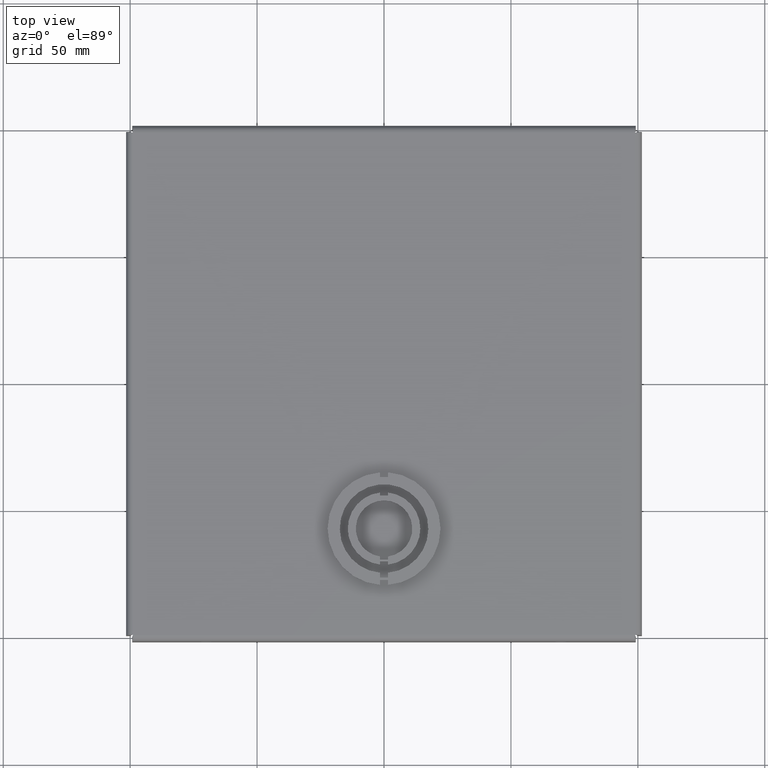
[diagram: clean part render]
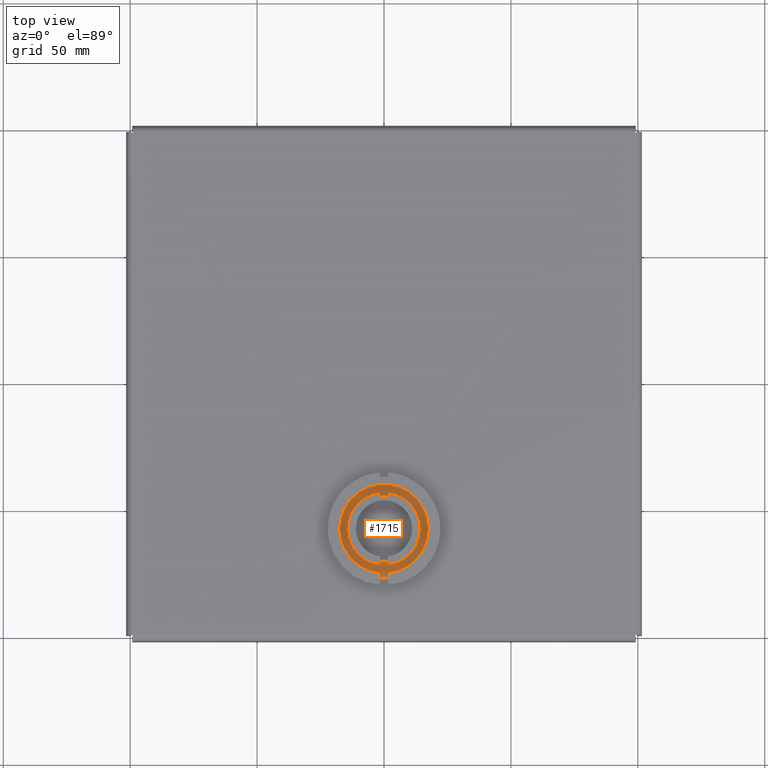
[diagram: same view with one face highlighted and labeled with its STEP entity id]
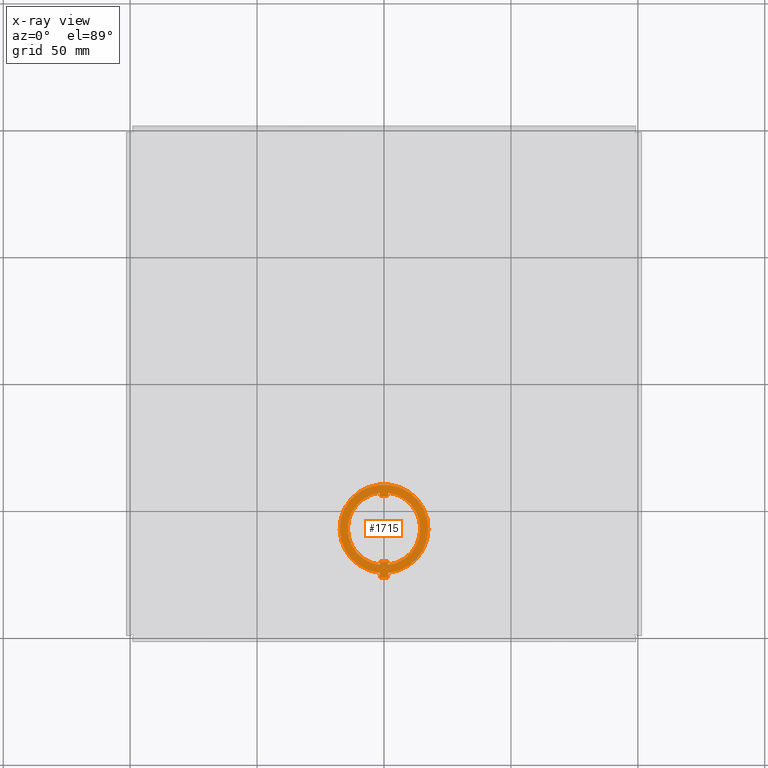
[diagram: x-ray of the same camera — body ghosted, the highlighted face saturated]
A machine part, top view. The second image highlights one B-rep face of the part: STEP entity #1715.
The next image is the same camera in x-ray: the body ghosted, the highlighted face saturated — about 0% of this face is hidden behind the body in this view.
In plain terms, the highlighted planar face has unit normal (0, 0, 1).
Its self-contained STEP definition (entity closure, byte-faithful):
#70=FACE_BOUND('',#369,.T.);
#73=CIRCLE('',#1730,0.6875);
#102=CIRCLE('',#1820,0.5625);
#104=CIRCLE('',#1826,0.5625);
#235=FACE_OUTER_BOUND('',#368,.T.);
#368=EDGE_LOOP('',(#1530,#1531,#1532,#1533));
#369=EDGE_LOOP('',(#1534,#1535,#1536,#1537,#1538,#1539,#1540,#1541));
#372=LINE('',#2290,#543);
#376=LINE('',#2298,#547);
#394=LINE('',#2342,#565);
#505=LINE('',#2912,#676);
#508=LINE('',#2918,#679);
#511=LINE('',#2924,#682);
#515=LINE('',#2936,#686);
#518=LINE('',#2942,#689);
#521=LINE('',#2946,#692);
#543=VECTOR('',#1855,0.0740000000000001);
#547=VECTOR('',#1861,0.125000000151755);
#565=VECTOR('',#1901,0.0740000000000001);
#676=VECTOR('',#2190,0.0499947152542758);
#679=VECTOR('',#2195,0.125000000214516);
#682=VECTOR('',#2200,0.0499947152542758);
#686=VECTOR('',#2212,0.0499947152542758);
#689=VECTOR('',#2217,0.125220388418771);
#692=VECTOR('',#2222,0.0499947152542754);
#714=VERTEX_POINT('',#2288);
#715=VERTEX_POINT('',#2289);
#718=VERTEX_POINT('',#2297);
#732=VERTEX_POINT('',#2336);
#828=VERTEX_POINT('',#2903);
#829=VERTEX_POINT('',#2905);
#831=VERTEX_POINT('',#2911);
#833=VERTEX_POINT('',#2917);
#835=VERTEX_POINT('',#2923);
#837=VERTEX_POINT('',#2929);
#839=VERTEX_POINT('',#2935);
#841=VERTEX_POINT('',#2941);
#854=EDGE_CURVE('',#714,#715,#372,.T.);
#858=EDGE_CURVE('',#718,#714,#376,.T.);
#877=EDGE_CURVE('',#715,#732,#73,.T.);
#880=EDGE_CURVE('',#732,#718,#394,.T.);
#1032=EDGE_CURVE('',#829,#828,#102,.T.);
#1035=EDGE_CURVE('',#831,#829,#505,.T.);
#1038=EDGE_CURVE('',#833,#831,#508,.T.);
#1041=EDGE_CURVE('',#835,#833,#511,.T.);
#1044=EDGE_CURVE('',#837,#835,#104,.T.);
#1047=EDGE_CURVE('',#839,#837,#515,.T.);
#1050=EDGE_CURVE('',#841,#839,#518,.T.);
#1053=EDGE_CURVE('',#828,#841,#521,.T.);
#1530=ORIENTED_EDGE('',*,*,#858,.T.);
#1531=ORIENTED_EDGE('',*,*,#854,.T.);
#1532=ORIENTED_EDGE('',*,*,#877,.T.);
#1533=ORIENTED_EDGE('',*,*,#880,.T.);
#1534=ORIENTED_EDGE('',*,*,#1050,.T.);
#1535=ORIENTED_EDGE('',*,*,#1047,.T.);
#1536=ORIENTED_EDGE('',*,*,#1044,.T.);
#1537=ORIENTED_EDGE('',*,*,#1041,.T.);
#1538=ORIENTED_EDGE('',*,*,#1038,.T.);
#1539=ORIENTED_EDGE('',*,*,#1035,.T.);
#1540=ORIENTED_EDGE('',*,*,#1032,.T.);
#1541=ORIENTED_EDGE('',*,*,#1053,.T.);
#1613=PLANE('',#1848);
#1715=ADVANCED_FACE('',(#235,#70),#1613,.T.);
#1730=AXIS2_PLACEMENT_3D('',#2337,#1894,#1895);
#1820=AXIS2_PLACEMENT_3D('',#2906,#2184,#2185);
#1826=AXIS2_PLACEMENT_3D('',#2930,#2206,#2207);
#1848=AXIS2_PLACEMENT_3D('',#2998,#2280,#2281);
#1855=DIRECTION('',(0.,1.,0.));
#1861=DIRECTION('',(0.999999998785962,4.92755063884075E-5,0.));
#1894=DIRECTION('center_axis',(0.,0.,1.));
#1895=DIRECTION('ref_axis',(-0.0909581623752382,0.995854714653357,0.));
#1901=DIRECTION('',(0.,-1.,0.));
#2184=DIRECTION('center_axis',(0.,0.,-1.));
#2185=DIRECTION('ref_axis',(-0.111365233126193,0.993779545397644,0.));
#2190=DIRECTION('',(0.,1.,0.));
#2195=DIRECTION('',(0.999999998283873,5.85854353210162E-5,0.));
#2200=DIRECTION('',(0.,-1.,0.));
#2206=DIRECTION('center_axis',(0.,0.,-1.));
#2207=DIRECTION('ref_axis',(0.111169333784828,-0.993801478780263,0.));
#2212=DIRECTION('',(0.,-1.,0.));
#2217=DIRECTION('',(-0.999999998283873,-5.85854353207668E-5,0.));
#2222=DIRECTION('',(0.,1.,0.));
#2280=DIRECTION('center_axis',(0.,0.,1.));
#2281=DIRECTION('ref_axis',(1.,0.,0.));
#2288=CARTESIAN_POINT('',(0.0625337366329777,-3.01065011632418,0.074));
#2289=CARTESIAN_POINT('',(0.0625337366329777,-2.93665011632418,0.074));
#2290=CARTESIAN_POINT('',(0.0625337366329777,-1.50532505816209,0.074));
#2297=CARTESIAN_POINT('',(-0.0624662633670223,-3.01065627576249,0.074));
#2298=CARTESIAN_POINT('',(-0.0311589559531626,-3.01065473307906,0.074));
#2336=CARTESIAN_POINT('',(-0.0624662633670223,-2.93665627576249,0.074));
#2337=CARTESIAN_POINT('Origin',(1.3987061727561E-15,-2.252,0.074));
#2342=CARTESIAN_POINT('',(-0.0624662633670223,-1.46832813788124,0.074));
#2903=CARTESIAN_POINT('',(0.0626429436334847,-2.81100099428617,0.074));
#2905=CARTESIAN_POINT('',(0.0624672497460352,-1.69297934500667,0.074));
#2906=CARTESIAN_POINT('Origin',(1.3987061727561E-15,-2.252,0.074));
#2911=CARTESIAN_POINT('',(0.0624672497460352,-1.74297406026095,0.074));
#2912=CARTESIAN_POINT('',(0.0624672497460352,-0.871487030130474,0.074));
#2917=CARTESIAN_POINT('',(-0.0625327502539646,-1.74298138344038,0.074));
#2918=CARTESIAN_POINT('',(-0.0312153185728312,-1.74297954869501,0.074));
#2923=CARTESIAN_POINT('',(-0.0625327502539646,-1.6929866681861,0.074));
#2924=CARTESIAN_POINT('',(-0.0625327502539646,-0.84649333409305,0.074));
#2929=CARTESIAN_POINT('',(-0.0625774445703923,-2.81100833037714,0.074));
#2930=CARTESIAN_POINT('Origin',(1.3987061727561E-15,-2.252,0.074));
#2935=CARTESIAN_POINT('',(-0.0625774445703923,-2.76101361512286,0.074));
#2936=CARTESIAN_POINT('',(-0.0625774445703923,-1.38050680756143,0.074));
#2941=CARTESIAN_POINT('',(0.0626429436334847,-2.7610062790319,0.074));
#2942=CARTESIAN_POINT('',(0.0314023493014972,-2.76100810927572,0.074));
#2946=CARTESIAN_POINT('',(0.0626429436334847,-1.40550049714309,0.074));
#2998=CARTESIAN_POINT('Origin',(3.49676543189026E-16,2.38415824901608E-16,
0.074));